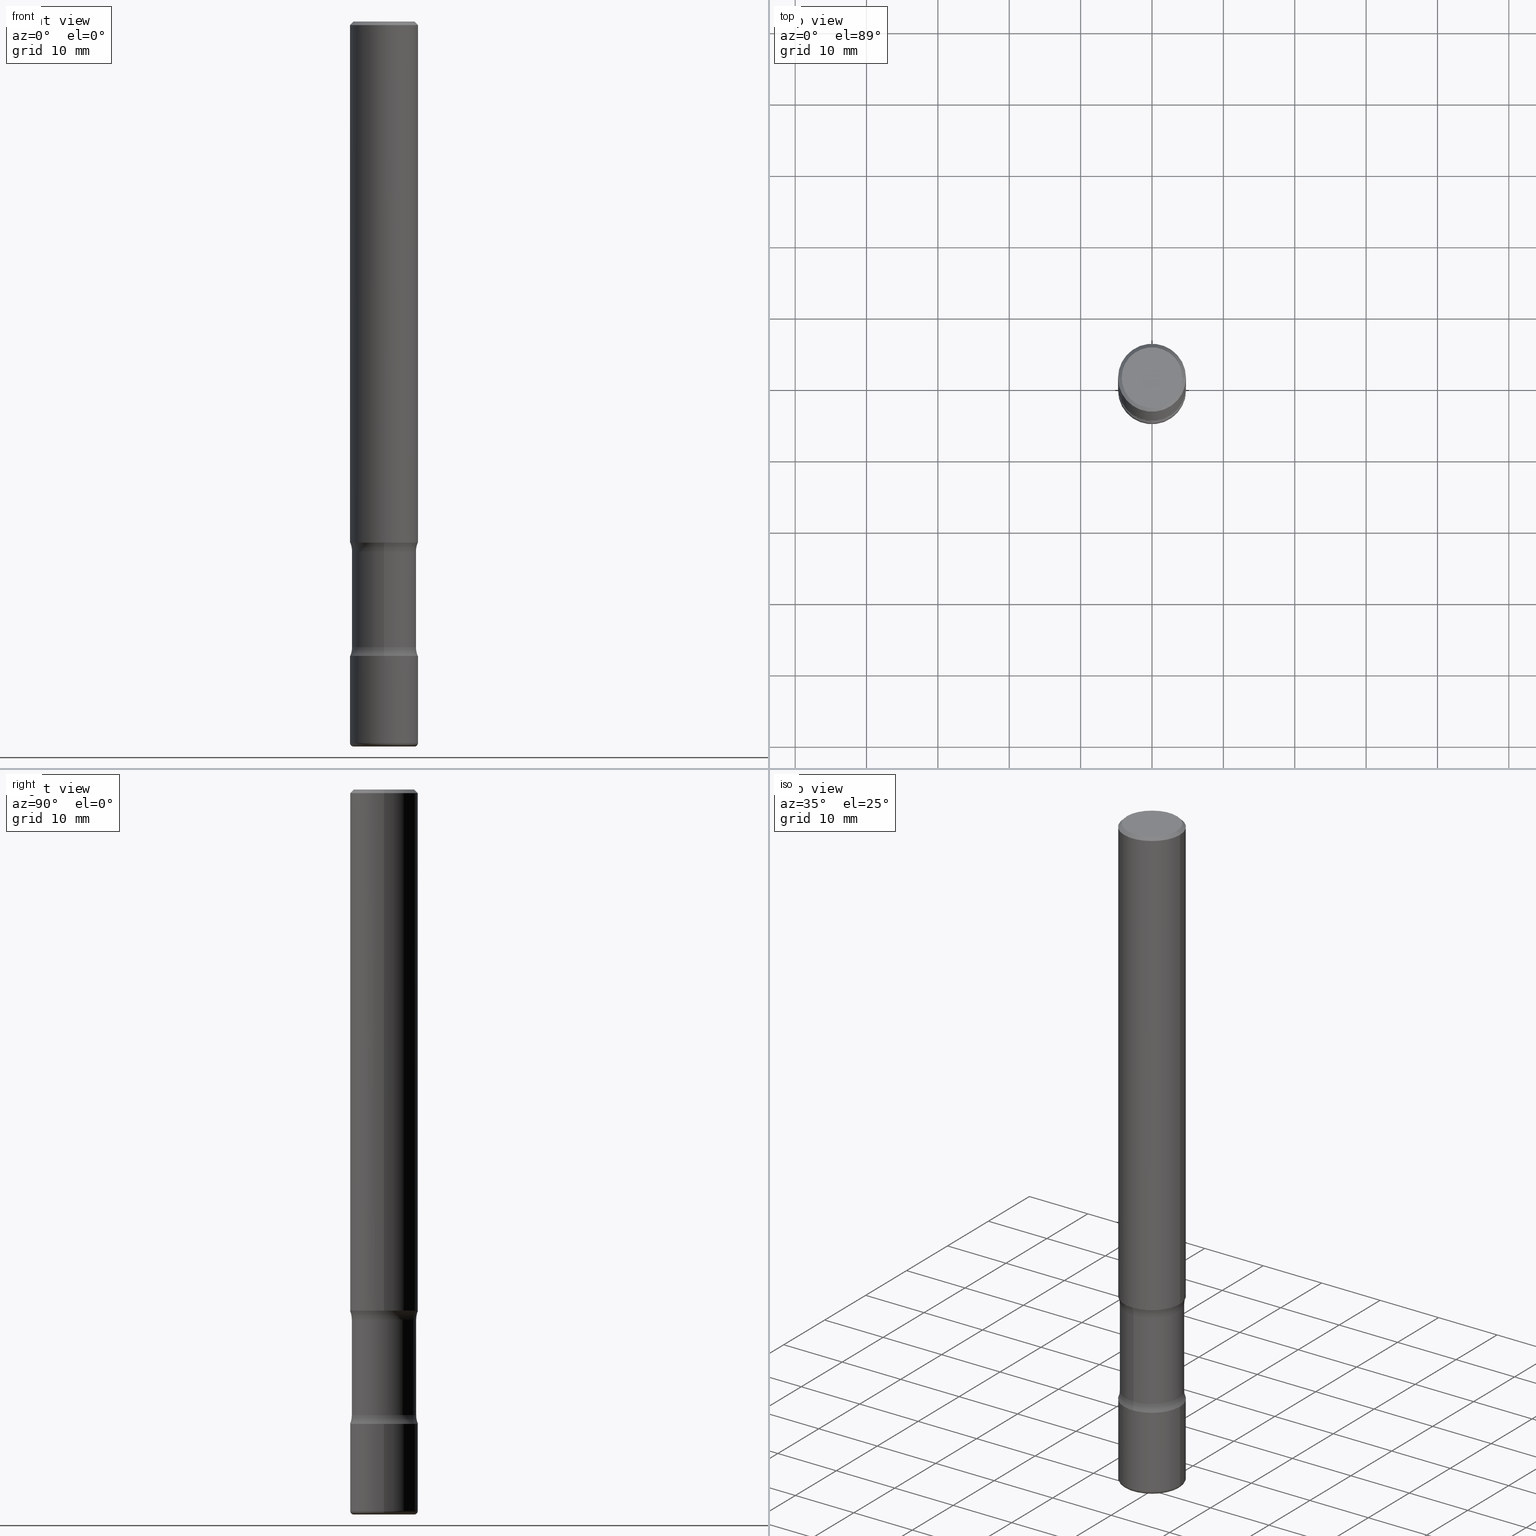
[diagram: canonical four-view strip — front | top / right | iso, engineering-drawing reading convention]
A machine part, canonical four-view strip (front | top / right | iso — engineering-drawing reading convention). The complete STEP part file that produces these views, byte-faithful:
ISO-10303-21;
HEADER;
FILE_DESCRIPTION (( 'STEP AP203' ),
    '1' );
FILE_NAME ('33507.STEP',
    '2024-03-01T22:41:39',
    ( '' ),
    ( '' ),
    'SwSTEP 2.0',
    'SolidWorks 2023',
    '' );
FILE_SCHEMA (( 'CONFIG_CONTROL_DESIGN' ));
ENDSEC;

DATA;
#1 = DIRECTION ( 'NONE',  ( -1.000000000000000000, 6.982962677686266711E-15, 0.000000000000000000 ) ) ;
#2 = EDGE_CURVE ( 'NONE', #53, #431, #287, .T. ) ;
#3 = DIRECTION ( 'NONE',  ( -2.445468806185136597E-29, 3.491481338843145583E-15, 1.000000000000000000 ) ) ;
#4 = ADVANCED_FACE ( 'NONE', ( #355 ), #311, .T. ) ;
#5 = DIRECTION ( 'NONE',  ( -2.445468806185136597E-29, 3.491481338843145583E-15, 1.000000000000000000 ) ) ;
#6 = CLOSED_SHELL ( 'NONE', ( #270, #34, #190, #357, #97, #37, #388, #159 ) ) ;
#7 = AXIS2_PLACEMENT_3D ( 'NONE', #31, #373, #496 ) ;
#8 = CARTESIAN_POINT ( 'NONE',  ( 8.559140821647976968E-29, -1.222018468595100934E-14, -3.500000000000000000 ) ) ;
#9 = ORIENTED_EDGE ( 'NONE', *, *, #429, .F. ) ;
#10 = APPLICATION_CONTEXT ( 'configuration controlled 3d designs of mechanical parts and assemblies' ) ;
#11 = ORIENTED_EDGE ( 'NONE', *, *, #73, .F. ) ;
#12 = FACE_OUTER_BOUND ( 'NONE', #266, .T. ) ;
#13 = VERTEX_POINT ( 'NONE', #390 ) ;
#14 = CARTESIAN_POINT ( 'NONE',  ( 0.1875000000000003608, -1.309305502066177375E-15, 9.142831454617397828E-30 ) ) ;
#15 = DIRECTION ( 'NONE',  ( -2.445468806185136597E-29, 3.491481338843145583E-15, 1.000000000000000000 ) ) ;
#16 = LINE ( 'NONE', #14, #145 ) ;
#17 = ORIENTED_EDGE ( 'NONE', *, *, #344, .F. ) ;
#18 = AXIS2_PLACEMENT_3D ( 'NONE', #234, #284, #155 ) ;
#19 = CIRCLE ( 'NONE', #47, 0.1675000000000001210 ) ;
#20 = CARTESIAN_POINT ( 'NONE',  ( 0.1875000000000003608, -1.352949018801718751E-14, -3.500000000000000000 ) ) ;
#21 = DIRECTION ( 'NONE',  ( 6.982962677686265922E-15, 1.000000000000000000, -3.078138584410440285E-15 ) ) ;
#22 = ORIENTED_EDGE ( 'NONE', *, *, #127, .T. ) ;
#23 = VERTEX_POINT ( 'NONE', #517 ) ;
#24 = ORIENTED_EDGE ( 'NONE', *, *, #487, .T. ) ;
#25 = EDGE_LOOP ( 'NONE', ( #220, #74, #22, #322 ) ) ;
#26 = EDGE_CURVE ( 'NONE', #440, #539, #395, .T. ) ;
#27 = SHAPE_DEFINITION_REPRESENTATION ( #181, #323 ) ;
#28 = ORIENTED_EDGE ( 'NONE', *, *, #344, .T. ) ;
#29 = DIRECTION ( 'NONE',  ( 1.000000000000000000, -6.982962677686266711E-15, 4.876176775795935793E-29 ) ) ;
#30 = CIRCLE ( 'NONE', #411, 0.1875000000000003608 ) ;
#31 = CARTESIAN_POINT ( 'NONE',  ( 0.000000000000000000, 0.000000000000000000, 0.000000000000000000 ) ) ;
#32 = AXIS2_PLACEMENT_3D ( 'NONE', #283, #447, #55 ) ;
#33 = CARTESIAN_POINT ( 'NONE',  ( 0.000000000000000000, 0.000000000000000000, 0.000000000000000000 ) ) ;
#34 = ADVANCED_FACE ( 'NONE', ( #298 ), #65, .F. ) ;
#35 = AXIS2_PLACEMENT_3D ( 'NONE', #54, #469, #215 ) ;
#36 = CARTESIAN_POINT ( 'NONE',  ( -0.1875000000000002498, 1.332267629550189623E-15, -9.223003294227960602E-30 ) ) ;
#37 = ADVANCED_FACE ( 'NONE', ( #486 ), #63, .F. ) ;
#38 = AXIS2_PLACEMENT_3D ( 'NONE', #222, #321, #104 ) ;
#39 = DIRECTION ( 'NONE',  ( 1.000000000000000000, -6.982962677686265922E-15, 4.876176775795936353E-29 ) ) ;
#40 = DATE_AND_TIME ( #51, #249 ) ;
#41 = PRODUCT_DEFINITION ( 'UNKNOWN', '', #111, #553 ) ;
#42 = CARTESIAN_POINT ( 'NONE',  ( -1.252040884593220094E-15, -0.1775000000000120093, -3.451010205144334986 ) ) ;
#43 = PLANE ( 'NONE',  #385 ) ;
#44 = ORIENTED_EDGE ( 'NONE', *, *, #405, .F. ) ;
#45 = ORIENTED_EDGE ( 'NONE', *, *, #205, .T. ) ;
#46 = DIRECTION ( 'NONE',  ( 2.438088387897960049E-29, -3.491481338843145188E-15, -1.000000000000000000 ) ) ;
#47 = AXIS2_PLACEMENT_3D ( 'NONE', #169, #297, #208 ) ;
#48 = DIRECTION ( 'NONE',  ( 6.860497997771531562E-15, 1.000000000000000000, 0.000000000000000000 ) ) ;
#49 = CARTESIAN_POINT ( 'NONE',  ( 1.169646248512450384E-15, 0.1675000000000001210, -5.848231242562273614E-16 ) ) ;
#50 = CARTESIAN_POINT ( 'NONE',  ( 8.559140821647976968E-29, -1.222018468595100934E-14, -3.500000000000000000 ) ) ;
#51 = CALENDAR_DATE ( 2024, 1, 3 ) ;
#52 = DIRECTION ( 'NONE',  ( 2.052439932101464102E-29, -4.054321056345256912E-15, -1.000000000000000000 ) ) ;
#53 = VERTEX_POINT ( 'NONE', #318 ) ;
#54 = CARTESIAN_POINT ( 'NONE',  ( 8.463183297233128142E-29, -1.201498963149789864E-14, -3.451010205144335430 ) ) ;
#55 = DIRECTION ( 'NONE',  ( 6.982962677686265922E-15, 1.000000000000000000, -3.078138584410437524E-15 ) ) ;
#56 = EDGE_LOOP ( 'NONE', ( #9, #223, #82, #86 ) ) ;
#57 = CIRCLE ( 'NONE', #245, 0.1249999999999999584 ) ;
#58 = CIRCLE ( 'NONE', #426, 0.1774999999999999911 ) ;
#59 = EDGE_LOOP ( 'NONE', ( #45, #525, #214, #273 ) ) ;
#60 = EDGE_CURVE ( 'NONE', #170, #401, #339, .T. ) ;
#61 = EDGE_LOOP ( 'NONE', ( #475, #407 ) ) ;
#62 = ORIENTED_EDGE ( 'NONE', *, *, #164, .T. ) ;
#63 = PLANE ( 'NONE',  #455 ) ;
#64 = FACE_OUTER_BOUND ( 'NONE', #546, .T. ) ;
#65 = TOROIDAL_SURFACE ( 'NONE', #508, 0.3024999999999999911, 0.1250000000000000278 ) ;
#66 = VECTOR ( 'NONE', #263, 39.37007874015748143 ) ;
#67 = LOCAL_TIME ( 17, 41, 39.00000000000000000, #148 ) ;
#68 = DIRECTION ( 'NONE',  ( 1.000000000000000000, -6.982962677686270655E-15, 0.000000000000000000 ) ) ;
#69 = CIRCLE ( 'NONE', #261, 0.1774999999999996303 ) ;
#70 = AXIS2_PLACEMENT_3D ( 'NONE', #544, #228, #29 ) ;
#71 = LOCAL_TIME ( 17, 41, 39.00000000000000000, #466 ) ;
#72 = FACE_OUTER_BOUND ( 'NONE', #444, .T. ) ;
#73 = EDGE_CURVE ( 'NONE', #13, #397, #69, .T. ) ;
#74 = ORIENTED_EDGE ( 'NONE', *, *, #527, .T. ) ;
#75 = PERSON_AND_ORGANIZATION_ROLE ( 'creator' ) ;
#76 = CARTESIAN_POINT ( 'NONE',  ( 9.585360787698712522E-29, -1.424734521412364332E-14, -4.000000000000000888 ) ) ;
#77 = DIRECTION ( 'NONE',  ( 1.000000000000000000, -6.982962677686265922E-15, 4.876176775795936353E-29 ) ) ;
#78 = EDGE_CURVE ( 'NONE', #532, #23, #30, .T. ) ;
#79 = PRODUCT_RELATED_PRODUCT_CATEGORY ( 'detail', '', ( #96 ) ) ;
#80 = AXIS2_PLACEMENT_3D ( 'NONE', #129, #483, #158 ) ;
#81 = CARTESIAN_POINT ( 'NONE',  ( 0.1875000000000003886, -1.134731435124022127E-14, -2.875000000000000000 ) ) ;
#82 = ORIENTED_EDGE ( 'NONE', *, *, #187, .T. ) ;
#83 = CARTESIAN_POINT ( 'NONE',  ( 7.376914475311787671E-29, -9.884854382564577022E-15, -2.923989794855664126 ) ) ;
#84 = DIRECTION ( 'NONE',  ( 2.052439932101463822E-29, -4.054321056345256912E-15, -1.000000000000000000 ) ) ;
#85 = ORIENTED_EDGE ( 'NONE', *, *, #536, .F. ) ;
#86 = ORIENTED_EDGE ( 'NONE', *, *, #293, .F. ) ;
#87 = CARTESIAN_POINT ( 'NONE',  ( -0.1875000000000003608, 1.332267629550190412E-15, -9.223003294227966207E-30 ) ) ;
#88 = FACE_OUTER_BOUND ( 'NONE', #61, .T. ) ;
#89 = CARTESIAN_POINT ( 'NONE',  ( -1.286343374582089001E-15, -0.1875000000000096867, -2.874999999999999112 ) ) ;
#90 = CC_DESIGN_PERSON_AND_ORGANIZATION_ASSIGNMENT ( #490, #500, ( #96 ) ) ;
#91 = CONICAL_SURFACE ( 'NONE', #199, 0.1875000000000001110, 0.7853981633974480570 ) ;
#92 = CARTESIAN_POINT ( 'NONE',  ( -2.075300644325803479E-15, -0.3025000000000120370, -3.451010205144334542 ) ) ;
#93 = EDGE_LOOP ( 'NONE', ( #247, #225 ) ) ;
#94 = CARTESIAN_POINT ( 'NONE',  ( -0.1875000000000003608, -1.172587257772317476E-14, -3.500000000000000000 ) ) ;
#95 = EDGE_LOOP ( 'NONE', ( #359, #211 ) ) ;
#96 = PRODUCT ( '33507', '33507', '', ( #109 ) ) ;
#97 = ADVANCED_FACE ( 'NONE', ( #251 ), #43, .F. ) ;
#98 = ORIENTED_EDGE ( 'NONE', *, *, #419, .T. ) ;
#99 = DIRECTION ( 'NONE',  ( 2.052439932101463822E-29, -4.054321056345256912E-15, -1.000000000000000000 ) ) ;
#100 = AXIS2_PLACEMENT_3D ( 'NONE', #374, #439, #21 ) ;
#101 = AXIS2_PLACEMENT_3D ( 'NONE', #226, #451, #409 ) ;
#102 = CC_DESIGN_APPROVAL ( #282, ( #248 ) ) ;
#103 = COORDINATED_UNIVERSAL_TIME_OFFSET ( 5, 0, .BEHIND. ) ;
#104 = DIRECTION ( 'NONE',  ( 1.000000000000000000, -6.982962677686274599E-15, 0.000000000000000000 ) ) ;
#105 =( CONVERSION_BASED_UNIT ( 'INCH', #406 ) LENGTH_UNIT ( ) NAMED_UNIT ( #114 ) );
#106 = DIRECTION ( 'NONE',  ( 1.000000000000000000, -6.860497997771530774E-15, 4.833906081039423280E-29 ) ) ;
#107 = AXIS2_PLACEMENT_3D ( 'NONE', #493, #99, #335 ) ;
#108 = VECTOR ( 'NONE', #112, 39.37007874015748143 ) ;
#109 = MECHANICAL_CONTEXT ( 'NONE', #229, 'mechanical' ) ;
#110 = CIRCLE ( 'NONE', #274, 0.1875000000000001110 ) ;
#111 = PRODUCT_DEFINITION_FORMATION_WITH_SPECIFIED_SOURCE ( 'ANY', '', #96, .NOT_KNOWN. ) ;
#112 = DIRECTION ( 'NONE',  ( -2.445468806185136877E-29, 3.491481338843145188E-15, 1.000000000000000000 ) ) ;
#113 = DIRECTION ( 'NONE',  ( 6.982962677686265922E-15, 1.000000000000000000, -3.078138584410437524E-15 ) ) ;
#114 = DIMENSIONAL_EXPONENTS ( 1.000000000000000000, 0.000000000000000000, 0.000000000000000000, 0.000000000000000000, 0.000000000000000000, 0.000000000000000000, 0.000000000000000000 ) ;
#115 = CALENDAR_DATE ( 2024, 1, 3 ) ;
#116 = AXIS2_PLACEMENT_3D ( 'NONE', #126, #5, #163 ) ;
#117 = CC_DESIGN_APPROVAL ( #324, ( #111 ) ) ;
#118 = DIRECTION ( 'NONE',  ( 2.052439932101463822E-29, -4.054321056345256912E-15, -1.000000000000000000 ) ) ;
#119 = ADVANCED_FACE ( 'NONE', ( #88 ), #259, .F. ) ;
#120 = DIRECTION ( 'NONE',  ( 2.438088387897960049E-29, -3.491481338843145188E-15, -1.000000000000000000 ) ) ;
#121 = EDGE_CURVE ( 'NONE', #539, #440, #481, .T. ) ;
#122 = DIRECTION ( 'NONE',  ( 6.982962677686266711E-15, 1.000000000000000000, -3.078138584410443835E-15 ) ) ;
#123 = EDGE_LOOP ( 'NONE', ( #11, #523, #488, #535 ) ) ;
#124 = AXIS2_PLACEMENT_3D ( 'NONE', #370, #497, #276 ) ;
#125 = AXIS2_PLACEMENT_3D ( 'NONE', #524, #478, #433 ) ;
#126 = CARTESIAN_POINT ( 'NONE',  ( 0.000000000000000000, 0.000000000000000000, 0.000000000000000000 ) ) ;
#127 = EDGE_CURVE ( 'NONE', #314, #23, #280, .T. ) ;
#128 = CARTESIAN_POINT ( 'NONE',  ( 8.559140821647976968E-29, -1.222018468595100934E-14, -3.500000000000000000 ) ) ;
#129 = CARTESIAN_POINT ( 'NONE',  ( 8.559140821647976968E-29, -1.222018468595100934E-14, -3.500000000000000000 ) ) ;
#130 = EDGE_CURVE ( 'NONE', #431, #53, #425, .T. ) ;
#131 = DIRECTION ( 'NONE',  ( 2.445468806185136597E-29, -3.491481338843145583E-15, -1.000000000000000000 ) ) ;
#132 = CARTESIAN_POINT ( 'NONE',  ( -1.286343374582078351E-15, -0.1875000000000125455, -3.499999999999999112 ) ) ;
#133 = DIRECTION ( 'NONE',  ( 7.105427357601001859E-15, 1.000000000000000000, -3.491481338843145583E-15 ) ) ;
#134 = VECTOR ( 'NONE', #52, 39.37007874015748143 ) ;
#135 =( NAMED_UNIT ( * ) SI_UNIT ( $, .STERADIAN. ) SOLID_ANGLE_UNIT ( ) );
#136 = ORIENTED_EDGE ( 'NONE', *, *, #461, .F. ) ;
#137 = EDGE_CURVE ( 'NONE', #13, #401, #57, .T. ) ;
#138 = DIRECTION ( 'NONE',  ( -6.982962677686265922E-15, -1.000000000000000000, 4.054321056345256912E-15 ) ) ;
#139 = CYLINDRICAL_SURFACE ( 'NONE', #70, 0.1875000000000002498 ) ;
#140 = VERTEX_POINT ( 'NONE', #186 ) ;
#141 = CIRCLE ( 'NONE', #412, 0.1875000000000003608 ) ;
#142 = CARTESIAN_POINT ( 'NONE',  ( 2.112346210000166835E-15, 0.3024999999999897771, -2.923989794855665014 ) ) ;
#143 = DIRECTION ( 'NONE',  ( 1.000000000000000000, 0.000000000000000000, 0.000000000000000000 ) ) ;
#144 = VECTOR ( 'NONE', #332, 39.37007874015748143 ) ;
#145 = VECTOR ( 'NONE', #443, 39.37007874015748143 ) ;
#146 = CARTESIAN_POINT ( 'NONE',  ( 7.388980740184074535E-29, -9.867574804498314684E-15, -2.923989794855664126 ) ) ;
#147 = CC_DESIGN_PERSON_AND_ORGANIZATION_ASSIGNMENT ( #558, #157, ( #111 ) ) ;
#148 = COORDINATED_UNIVERSAL_TIME_OFFSET ( 5, 0, .BEHIND. ) ;
#149 = DIRECTION ( 'NONE',  ( -2.445468806185136597E-29, 3.491481338843145583E-15, 1.000000000000000000 ) ) ;
#150 = CARTESIAN_POINT ( 'NONE',  ( 0.000000000000000000, 0.000000000000000000, 0.000000000000000000 ) ) ;
#151 = EDGE_LOOP ( 'NONE', ( #295, #17, #435, #450 ) ) ;
#152 = LINE ( 'NONE', #36, #449 ) ;
#153 = AXIS2_PLACEMENT_3D ( 'NONE', #434, #292, #156 ) ;
#154 = AXIS2_PLACEMENT_3D ( 'NONE', #233, #197, #383 ) ;
#155 = DIRECTION ( 'NONE',  ( 1.000000000000000000, -6.982962677686266711E-15, 0.000000000000000000 ) ) ;
#156 = DIRECTION ( 'NONE',  ( 1.000000000000000000, -6.982962677686265922E-15, 4.876176775795935793E-29 ) ) ;
#157 = PERSON_AND_ORGANIZATION_ROLE ( 'design_supplier' ) ;
#158 = DIRECTION ( 'NONE',  ( 6.982962677686265922E-15, 1.000000000000000000, -2.913971193241875244E-15 ) ) ;
#159 = ADVANCED_FACE ( 'NONE', ( #545 ), #316, .T. ) ;
#160 = DIRECTION ( 'NONE',  ( 1.000000000000000000, -6.982962677686269077E-15, 0.000000000000000000 ) ) ;
#161 = AXIS2_PLACEMENT_3D ( 'NONE', #506, #505, #68 ) ;
#162 = AXIS2_PLACEMENT_3D ( 'NONE', #315, #217, #534 ) ;
#163 = DIRECTION ( 'NONE',  ( 1.000000000000000000, -6.982962677686266711E-15, 4.876176775795935232E-29 ) ) ;
#164 = EDGE_CURVE ( 'NONE', #397, #170, #360, .T. ) ;
#165 = ORIENTED_EDGE ( 'NONE', *, *, #527, .F. ) ;
#166 = DIRECTION ( 'NONE',  ( 2.052439932101464102E-29, -4.054321056345256912E-15, -1.000000000000000000 ) ) ;
#167 = ORIENTED_EDGE ( 'NONE', *, *, #405, .T. ) ;
#168 = EDGE_LOOP ( 'NONE', ( #136, #294, #253, #275 ) ) ;
#169 = CARTESIAN_POINT ( 'NONE',  ( 0.000000000000000000, 0.000000000000000000, 0.000000000000000000 ) ) ;
#170 = VERTEX_POINT ( 'NONE', #448 ) ;
#171 = ORIENTED_EDGE ( 'NONE', *, *, #336, .F. ) ;
#172 = ORIENTED_EDGE ( 'NONE', *, *, #470, .F. ) ;
#173 = ORIENTED_EDGE ( 'NONE', *, *, #26, .T. ) ;
#174 = CARTESIAN_POINT ( 'NONE',  ( 8.559140821647976968E-29, -1.222018468595100934E-14, -3.500000000000000000 ) ) ;
#175 = EDGE_CURVE ( 'NONE', #431, #140, #334, .T. ) ;
#176 = TOROIDAL_SURFACE ( 'NONE', #125, 0.3024999999999996581, 0.1249999999999999584 ) ;
#177 = AXIS2_PLACEMENT_3D ( 'NONE', #150, #196, #39 ) ;
#178 = CC_DESIGN_APPROVAL ( #503, ( #41 ) ) ;
#179 = EDGE_LOOP ( 'NONE', ( #44, #459, #24, #238 ) ) ;
#180 = EDGE_LOOP ( 'NONE', ( #484, #165 ) ) ;
#181 = PRODUCT_DEFINITION_SHAPE ( 'NONE', 'NONE',  #41 ) ;
#182 = PERSON_AND_ORGANIZATION ( #521, #471 ) ;
#183 = ORIENTED_EDGE ( 'NONE', *, *, #336, .T. ) ;
#184 = CALENDAR_DATE ( 2024, 1, 3 ) ;
#185 = CIRCLE ( 'NONE', #221, 0.1875000000000003608 ) ;
#186 = CARTESIAN_POINT ( 'NONE',  ( 0.1875000000000001110, -1.356173001359025861E-15, -0.02000000000000000042 ) ) ;
#187 = EDGE_CURVE ( 'NONE', #140, #351, #377, .T. ) ;
#188 = DIRECTION ( 'NONE',  ( 0.000000000000000000, 0.000000000000000000, 1.000000000000000000 ) ) ;
#189 = APPROVAL_STATUS ( 'not_yet_approved' ) ;
#190 = ADVANCED_FACE ( 'NONE', ( #191 ), #328, .F. ) ;
#191 = FACE_OUTER_BOUND ( 'NONE', #123, .T. ) ;
#192 = EDGE_CURVE ( 'NONE', #514, #140, #200, .T. ) ;
#193 = CLOSED_SHELL ( 'NONE', ( #555, #366, #400, #358, #119, #547 ) ) ;
#194 = CIRCLE ( 'NONE', #32, 0.1774999999999999911 ) ;
#195 = DIRECTION ( 'NONE',  ( -2.445468806185136877E-29, 3.491481338843145188E-15, 1.000000000000000000 ) ) ;
#196 = DIRECTION ( 'NONE',  ( -2.445468806185136597E-29, 3.491481338843145583E-15, 1.000000000000000000 ) ) ;
#197 = DIRECTION ( 'NONE',  ( -2.445468806185136597E-29, 3.491481338843145583E-15, 1.000000000000000000 ) ) ;
#198 = DATE_TIME_ROLE ( 'creation_date' ) ;
#199 = AXIS2_PLACEMENT_3D ( 'NONE', #255, #131, #1 ) ;
#200 = LINE ( 'NONE', #550, #144 ) ;
#201 = PLANE ( 'NONE',  #300 ) ;
#202 = PLANE ( 'NONE',  #501 ) ;
#203 = DIRECTION ( 'NONE',  ( -1.000000000000000000, 6.982962677686266711E-15, 0.000000000000000000 ) ) ;
#204 = DIRECTION ( 'NONE',  ( -2.445468806185136597E-29, 3.491481338843145583E-15, 1.000000000000000000 ) ) ;
#205 = EDGE_CURVE ( 'NONE', #314, #543, #446, .T. ) ;
#206 = ORIENTED_EDGE ( 'NONE', *, *, #519, .F. ) ;
#207 = AXIS2_PLACEMENT_3D ( 'NONE', #384, #296, #77 ) ;
#208 = DIRECTION ( 'NONE',  ( 1.000000000000000000, -6.982962677686266711E-15, 4.876176775795935232E-29 ) ) ;
#209 = COORDINATED_UNIVERSAL_TIME_OFFSET ( 5, 0, .BEHIND. ) ;
#210 = DIRECTION ( 'NONE',  ( 2.052439932101463822E-29, -4.054321056345256912E-15, -1.000000000000000000 ) ) ;
#211 = ORIENTED_EDGE ( 'NONE', *, *, #470, .T. ) ;
#212 = CARTESIAN_POINT ( 'NONE',  ( 0.1675000000000004541, -1.513557160388503705E-14, -4.000000000000000000 ) ) ;
#213 = EDGE_CURVE ( 'NONE', #356, #489, #58, .T. ) ;
#214 = ORIENTED_EDGE ( 'NONE', *, *, #419, .F. ) ;
#215 = DIRECTION ( 'NONE',  ( 6.982962677686265922E-15, 1.000000000000000000, -4.054321056345256912E-15 ) ) ;
#216 = DIRECTION ( 'NONE',  ( -2.052439932101463822E-29, 4.054321056345256912E-15, 1.000000000000000000 ) ) ;
#217 = DIRECTION ( 'NONE',  ( -1.000000000000000000, 6.982962677686265922E-15, -4.883557194083112340E-29 ) ) ;
#218 = ORIENTED_EDGE ( 'NONE', *, *, #60, .T. ) ;
#219 = CARTESIAN_POINT ( 'NONE',  ( -2.075300644325811762E-15, -0.3025000000000094835, -2.923989794855662794 ) ) ;
#220 = ORIENTED_EDGE ( 'NONE', *, *, #331, .F. ) ;
#221 = AXIS2_PLACEMENT_3D ( 'NONE', #8, #210, #306 ) ;
#222 = CARTESIAN_POINT ( 'NONE',  ( 0.1675000000000003708, -1.506574197710817376E-14, -3.979999999999999982 ) ) ;
#223 = ORIENTED_EDGE ( 'NONE', *, *, #192, .T. ) ;
#224 = ORIENTED_EDGE ( 'NONE', *, *, #137, .F. ) ;
#225 = ORIENTED_EDGE ( 'NONE', *, *, #277, .F. ) ;
#226 = CARTESIAN_POINT ( 'NONE',  ( 9.781875224740546387E-29, -1.396592535537258233E-14, -4.000000000000000000 ) ) ;
#227 = CC_DESIGN_PERSON_AND_ORGANIZATION_ASSIGNMENT ( #382, #552, ( #111 ) ) ;
#228 = DIRECTION ( 'NONE',  ( -2.445468806185136597E-29, 3.491481338843145583E-15, 1.000000000000000000 ) ) ;
#229 = APPLICATION_CONTEXT ( 'configuration controlled 3d designs of mechanical parts and assemblies' ) ;
#230 = CIRCLE ( 'NONE', #557, 0.01999999999999988939 ) ;
#231 =( LENGTH_UNIT ( ) NAMED_UNIT ( * ) SI_UNIT ( $, .METRE. ) );
#232 = ADVANCED_FACE ( 'NONE', ( #72 ), #389, .F. ) ;
#233 = CARTESIAN_POINT ( 'NONE',  ( 9.732965848616844417E-29, -1.389609572859572061E-14, -3.979999999999999982 ) ) ;
#234 = CARTESIAN_POINT ( 'NONE',  ( 4.890937612370273159E-31, -6.982962677686291609E-17, -0.02000000000000000042 ) ) ;
#235 = PERSON_AND_ORGANIZATION ( #521, #471 ) ;
#236 = DIRECTION ( 'NONE',  ( 1.000000000000000000, -6.982962677686269866E-15, 0.000000000000000000 ) ) ;
#237 = CARTESIAN_POINT ( 'NONE',  ( 7.276365864084563130E-29, -9.686234025735224364E-15, -2.875000000000000000 ) ) ;
#238 = ORIENTED_EDGE ( 'NONE', *, *, #26, .F. ) ;
#239 = APPROVAL_DATE_TIME ( #416, #324 ) ;
#240 = LINE ( 'NONE', #509, #288 ) ;
#241 = CARTESIAN_POINT ( 'NONE',  ( 7.030722817782267716E-29, -1.003800884917404311E-14, -2.875000000000000000 ) ) ;
#242 = DIRECTION ( 'NONE',  ( 2.052439932101463822E-29, -4.054321056345256912E-15, -1.000000000000000000 ) ) ;
#243 = DIRECTION ( 'NONE',  ( 6.982962677686266711E-15, 1.000000000000000000, -3.078138584410443835E-15 ) ) ;
#244 = ADVANCED_FACE ( 'NONE', ( #285 ), #281, .T. ) ;
#245 = AXIS2_PLACEMENT_3D ( 'NONE', #219, #106, #410 ) ;
#246 = CONICAL_SURFACE ( 'NONE', #386, 0.1875000000000001110, 0.7853981633974480570 ) ;
#247 = ORIENTED_EDGE ( 'NONE', *, *, #60, .F. ) ;
#248 = SECURITY_CLASSIFICATION ( '', '', #343 ) ;
#249 = LOCAL_TIME ( 17, 41, 39.00000000000000000, #209 ) ;
#250 = CARTESIAN_POINT ( 'NONE',  ( 4.890937612370273159E-31, -6.982962677686291609E-17, -0.02000000000000000042 ) ) ;
#251 = FACE_OUTER_BOUND ( 'NONE', #93, .T. ) ;
#252 = CARTESIAN_POINT ( 'NONE',  ( 1.239475875289406768E-15, 0.1774999999999855860, -4.000000000000001776 ) ) ;
#253 = ORIENTED_EDGE ( 'NONE', *, *, #536, .T. ) ;
#254 = CC_DESIGN_PERSON_AND_ORGANIZATION_ASSIGNMENT ( #326, #75, ( #41 ) ) ;
#255 = CARTESIAN_POINT ( 'NONE',  ( 4.890937612370273159E-31, -6.982962677686291609E-17, -0.02000000000000000042 ) ) ;
#256 = DIRECTION ( 'NONE',  ( 2.438088387897960049E-29, -3.491481338843145188E-15, -1.000000000000000000 ) ) ;
#257 = EDGE_LOOP ( 'NONE', ( #183, #368, #206, #338 ) ) ;
#258 = ORIENTED_EDGE ( 'NONE', *, *, #299, .F. ) ;
#259 = PLANE ( 'NONE',  #153 ) ;
#260 = LINE ( 'NONE', #252, #134 ) ;
#261 = AXIS2_PLACEMENT_3D ( 'NONE', #507, #556, #243 ) ;
#262 = CIRCLE ( 'NONE', #116, 0.1675000000000001210 ) ;
#263 = DIRECTION ( 'NONE',  ( -2.445468806185136877E-29, 3.491481338843145188E-15, 1.000000000000000000 ) ) ;
#264 = APPROVAL_PERSON_ORGANIZATION ( #235, #324, #387 ) ;
#265 = DIRECTION ( 'NONE',  ( 1.000000000000000000, -6.860497997771530774E-15, 4.833906081039423280E-29 ) ) ;
#266 = EDGE_LOOP ( 'NONE', ( #28, #538 ) ) ;
#267 = EDGE_LOOP ( 'NONE', ( #172, #398, #541, #85 ) ) ;
#268 = UNCERTAINTY_MEASURE_WITH_UNIT (LENGTH_MEASURE( 1.000000000000000082E-05 ), #105, 'distance_accuracy_value', 'NONE');
#269 = ORIENTED_EDGE ( 'NONE', *, *, #175, .T. ) ;
#270 = ADVANCED_FACE ( 'NONE', ( #468 ), #462, .T. ) ;
#271 = APPLICATION_PROTOCOL_DEFINITION ( 'international standard', 'config_control_design', 1994, #10 ) ;
#272 = DIRECTION ( 'NONE',  ( -6.982962677686267499E-15, -1.000000000000000000, 0.000000000000000000 ) ) ;
#273 = ORIENTED_EDGE ( 'NONE', *, *, #127, .F. ) ;
#274 = AXIS2_PLACEMENT_3D ( 'NONE', #502, #381, #458 ) ;
#275 = ORIENTED_EDGE ( 'NONE', *, *, #519, .T. ) ;
#276 = DIRECTION ( 'NONE',  ( 1.000000000000000000, -6.982962677686269077E-15, 0.000000000000000000 ) ) ;
#277 = EDGE_CURVE ( 'NONE', #401, #170, #482, .T. ) ;
#278 = CARTESIAN_POINT ( 'NONE',  ( 8.463183297233128142E-29, -1.201498963149789864E-14, -3.451010205144335430 ) ) ;
#279 = ORIENTED_EDGE ( 'NONE', *, *, #130, .T. ) ;
#280 = CIRCLE ( 'NONE', #38, 0.01999999999999988939 ) ;
#281 = TOROIDAL_SURFACE ( 'NONE', #154, 0.1675000000000003708, 0.01999999999999988939 ) ;
#282 = APPROVAL ( #312, 'UNSPECIFIED' ) ;
#283 = CARTESIAN_POINT ( 'NONE',  ( 8.458592210420752426E-29, -1.202156432912165511E-14, -3.451010205144335430 ) ) ;
#284 = DIRECTION ( 'NONE',  ( -2.445468806185136597E-29, 3.491481338843145583E-15, 1.000000000000000000 ) ) ;
#285 = FACE_OUTER_BOUND ( 'NONE', #59, .T. ) ;
#286 = PERSON_AND_ORGANIZATION_ROLE ( 'classification_officer' ) ;
#287 = CIRCLE ( 'NONE', #548, 0.1875000000000003886 ) ;
#288 = VECTOR ( 'NONE', #418, 39.37007874015748143 ) ;
#289 = DATE_AND_TIME ( #115, #67 ) ;
#290 = APPROVAL_PERSON_ORGANIZATION ( #333, #282, #305 ) ;
#291 = CYLINDRICAL_SURFACE ( 'NONE', #177, 0.1875000000000003608 ) ;
#292 = DIRECTION ( 'NONE',  ( -2.438088387897960049E-29, 3.491481338843145188E-15, 1.000000000000000000 ) ) ;
#293 = EDGE_CURVE ( 'NONE', #353, #351, #240, .T. ) ;
#294 = ORIENTED_EDGE ( 'NONE', *, *, #460, .F. ) ;
#295 = ORIENTED_EDGE ( 'NONE', *, *, #192, .F. ) ;
#296 = DIRECTION ( 'NONE',  ( -2.445468806185136597E-29, 3.491481338843145583E-15, 1.000000000000000000 ) ) ;
#297 = DIRECTION ( 'NONE',  ( -2.445468806185136597E-29, 3.491481338843145583E-15, 1.000000000000000000 ) ) ;
#298 = FACE_OUTER_BOUND ( 'NONE', #267, .T. ) ;
#299 = EDGE_CURVE ( 'NONE', #53, #351, #152, .T. ) ;
#300 = AXIS2_PLACEMENT_3D ( 'NONE', #346, #256, #515 ) ;
#301 = CARTESIAN_POINT ( 'NONE',  ( 9.732965848616844417E-29, -1.389609572859572061E-14, -3.979999999999999982 ) ) ;
#302 = CARTESIAN_POINT ( 'NONE',  ( 9.732965848616844417E-29, -1.389609572859572061E-14, -3.979999999999999982 ) ) ;
#303 = DIRECTION ( 'NONE',  ( -2.445468806185136597E-29, 3.491481338843145583E-15, 1.000000000000000000 ) ) ;
#304 = ADVANCED_FACE ( 'NONE', ( #551 ), #291, .T. ) ;
#305 = APPROVAL_ROLE ( '' ) ;
#306 = DIRECTION ( 'NONE',  ( 6.982962677686265922E-15, 1.000000000000000000, -2.913971193241875244E-15 ) ) ;
#307 = ORIENTED_EDGE ( 'NONE', *, *, #73, .T. ) ;
#308 = DIRECTION ( 'NONE',  ( 6.982962677686265922E-15, 1.000000000000000000, -4.054321056345256912E-15 ) ) ;
#309 = EDGE_CURVE ( 'NONE', #351, #140, #110, .T. ) ;
#310 = DIRECTION ( 'NONE',  ( -1.000000000000000000, 7.105427357600964782E-15, 0.000000000000000000 ) ) ;
#311 = CYLINDRICAL_SURFACE ( 'NONE', #207, 0.1875000000000003608 ) ;
#312 = APPROVAL_STATUS ( 'not_yet_approved' ) ;
#313 = ORIENTED_EDGE ( 'NONE', *, *, #474, .F. ) ;
#314 = VERTEX_POINT ( 'NONE', #212 ) ;
#315 = CARTESIAN_POINT ( 'NONE',  ( 2.112346210000180246E-15, 0.3024999999999880007, -3.451010205144336762 ) ) ;
#316 = CYLINDRICAL_SURFACE ( 'NONE', #100, 0.1774999999999998246 ) ;
#317 = ORIENTED_EDGE ( 'NONE', *, *, #121, .T. ) ;
#318 = CARTESIAN_POINT ( 'NONE',  ( -0.1875000000000003886, -3.721651608425259832E-15, -2.875000000000000000 ) ) ;
#319 = ORIENTED_EDGE ( 'NONE', *, *, #487, .F. ) ;
#320 =( NAMED_UNIT ( * ) PLANE_ANGLE_UNIT ( ) SI_UNIT ( $, .RADIAN. ) );
#321 = DIRECTION ( 'NONE',  ( -6.982962677686266711E-15, -1.000000000000000000, 3.491481338843145583E-15 ) ) ;
#322 = ORIENTED_EDGE ( 'NONE', *, *, #78, .F. ) ;
#323 = ADVANCED_BREP_SHAPE_REPRESENTATION ( '33507', ( #472, #492, #480, #342 ), #465 ) ;
#324 = APPROVAL ( #189, 'UNSPECIFIED' ) ;
#325 = AXIS2_PLACEMENT_3D ( 'NONE', #128, #303, #345 ) ;
#326 = PERSON_AND_ORGANIZATION ( #521, #471 ) ;
#327 = CARTESIAN_POINT ( 'NONE',  ( 1.309305502066262769E-15, 0.1874999999999880929, -3.500000000000000444 ) ) ;
#328 = TOROIDAL_SURFACE ( 'NONE', #403, 0.3024999999999996581, 0.1249999999999999584 ) ;
#329 = DIRECTION ( 'NONE',  ( 6.982962677686265922E-15, 1.000000000000000000, -3.078138584410440285E-15 ) ) ;
#330 = TOROIDAL_SURFACE ( 'NONE', #371, 0.1675000000000003708, 0.01999999999999988939 ) ;
#331 = EDGE_CURVE ( 'NONE', #543, #532, #230, .T. ) ;
#332 = DIRECTION ( 'NONE',  ( 0.7071067811865473507, -7.319954787623256045E-15, -0.7071067811865476838 ) ) ;
#333 = PERSON_AND_ORGANIZATION ( #521, #471 ) ;
#334 = LINE ( 'NONE', #467, #108 ) ;
#335 = DIRECTION ( 'NONE',  ( 6.982962677686266711E-15, 1.000000000000000000, -2.913971193241881161E-15 ) ) ;
#336 = EDGE_CURVE ( 'NONE', #397, #13, #510, .T. ) ;
#337 = DIRECTION ( 'NONE',  ( 6.982962677686266711E-15, 1.000000000000000000, -2.913971193241881161E-15 ) ) ;
#338 = ORIENTED_EDGE ( 'NONE', *, *, #436, .F. ) ;
#339 = CIRCLE ( 'NONE', #107, 0.1874999999999999722 ) ;
#340 = AXIS2_PLACEMENT_3D ( 'NONE', #76, #423, #329 ) ;
#341 = COORDINATED_UNIVERSAL_TIME_OFFSET ( 5, 0, .BEHIND. ) ;
#342 = AXIS2_PLACEMENT_3D ( 'NONE', #33, #188, #143 ) ;
#343 = SECURITY_CLASSIFICATION_LEVEL ( 'unclassified' ) ;
#344 = EDGE_CURVE ( 'NONE', #353, #514, #19, .T. ) ;
#345 = DIRECTION ( 'NONE',  ( 1.000000000000000000, -6.982962677686269866E-15, 0.000000000000000000 ) ) ;
#346 = CARTESIAN_POINT ( 'NONE',  ( 2.800410097363089364E-28, 1.212933906171877819E-14, -4.000000000000000888 ) ) ;
#347 = LINE ( 'NONE', #87, #66 ) ;
#348 = EDGE_LOOP ( 'NONE', ( #313, #307, #363, #477 ) ) ;
#349 = CIRCLE ( 'NONE', #80, 0.1875000000000003608 ) ;
#350 = FACE_OUTER_BOUND ( 'NONE', #56, .T. ) ;
#351 = VERTEX_POINT ( 'NONE', #399 ) ;
#352 = FACE_OUTER_BOUND ( 'NONE', #180, .T. ) ;
#353 = VERTEX_POINT ( 'NONE', #520 ) ;
#354 = DIRECTION ( 'NONE',  ( 2.445468806185136597E-29, -3.491481338843145583E-15, -1.000000000000000000 ) ) ;
#355 = FACE_OUTER_BOUND ( 'NONE', #179, .T. ) ;
#356 = VERTEX_POINT ( 'NONE', #42 ) ;
#357 = ADVANCED_FACE ( 'NONE', ( #437 ), #176, .F. ) ;
#358 = ADVANCED_FACE ( 'NONE', ( #12 ), #202, .F. ) ;
#359 = ORIENTED_EDGE ( 'NONE', *, *, #460, .T. ) ;
#360 = CIRCLE ( 'NONE', #417, 0.1249999999999999584 ) ;
#361 = AXIS2_PLACEMENT_3D ( 'NONE', #237, #421, #337 ) ;
#362 = APPROVAL_PERSON_ORGANIZATION ( #182, #503, #495 ) ;
#363 = ORIENTED_EDGE ( 'NONE', *, *, #436, .T. ) ;
#364 = APPLICATION_PROTOCOL_DEFINITION ( 'international standard', 'config_control_design', 1994, #229 ) ;
#365 = DIRECTION ( 'NONE',  ( -1.000000000000000000, 6.982962677686265922E-15, -4.883557194083112340E-29 ) ) ;
#366 = ADVANCED_FACE ( 'NONE', ( #350 ), #246, .T. ) ;
#367 = CARTESIAN_POINT ( 'NONE',  ( -0.1875000000000003331, -1.256382809904552961E-14, -3.979999999999999982 ) ) ;
#368 = ORIENTED_EDGE ( 'NONE', *, *, #474, .T. ) ;
#369 = DATE_AND_TIME ( #184, #413 ) ;
#370 = CARTESIAN_POINT ( 'NONE',  ( 7.030722817782267716E-29, -1.003800884917404311E-14, -2.875000000000000000 ) ) ;
#371 = AXIS2_PLACEMENT_3D ( 'NONE', #301, #432, #394 ) ;
#372 = CC_DESIGN_SECURITY_CLASSIFICATION ( #248, ( #111 ) ) ;
#373 = DIRECTION ( 'NONE',  ( -2.445468806185136597E-29, 3.491481338843145583E-15, 1.000000000000000000 ) ) ;
#374 = CARTESIAN_POINT ( 'NONE',  ( 9.585360787698712522E-29, -1.424734521412364332E-14, -4.000000000000000888 ) ) ;
#375 = CYLINDRICAL_SURFACE ( 'NONE', #7, 0.1875000000000002498 ) ;
#376 = DATE_TIME_ROLE ( 'classification_date' ) ;
#377 = CIRCLE ( 'NONE', #18, 0.1875000000000001110 ) ;
#378 = AXIS2_PLACEMENT_3D ( 'NONE', #92, #265, #48 ) ;
#379 = DIRECTION ( 'NONE',  ( 6.982962677686265133E-15, 1.000000000000000000, -4.054321056345256912E-15 ) ) ;
#380 = CC_DESIGN_DATE_AND_TIME_ASSIGNMENT ( #289, #198, ( #41 ) ) ;
#381 = DIRECTION ( 'NONE',  ( -2.445468806185136597E-29, 3.491481338843145583E-15, 1.000000000000000000 ) ) ;
#382 = PERSON_AND_ORGANIZATION ( #521, #471 ) ;
#383 = DIRECTION ( 'NONE',  ( 1.000000000000000000, -6.982962677686263555E-15, 4.883557194083111780E-29 ) ) ;
#384 = CARTESIAN_POINT ( 'NONE',  ( 0.000000000000000000, 0.000000000000000000, 0.000000000000000000 ) ) ;
#385 = AXIS2_PLACEMENT_3D ( 'NONE', #392, #84, #308 ) ;
#386 = AXIS2_PLACEMENT_3D ( 'NONE', #250, #354, #203 ) ;
#387 = APPROVAL_ROLE ( '' ) ;
#388 = ADVANCED_FACE ( 'NONE', ( #442 ), #456, .F. ) ;
#389 = PLANE ( 'NONE',  #531 ) ;
#390 = CARTESIAN_POINT ( 'NONE',  ( -1.252040884593229560E-15, -0.1775000000000095113, -2.923989794855663682 ) ) ;
#391 = FACE_OUTER_BOUND ( 'NONE', #151, .T. ) ;
#392 = CARTESIAN_POINT ( 'NONE',  ( 7.030722817782267716E-29, -1.003800884917404311E-14, -2.875000000000000000 ) ) ;
#393 = ORIENTED_EDGE ( 'NONE', *, *, #299, .T. ) ;
#394 = DIRECTION ( 'NONE',  ( 1.000000000000000000, -6.982962677686263555E-15, 4.883557194083111780E-29 ) ) ;
#395 = CIRCLE ( 'NONE', #325, 0.1875000000000003608 ) ;
#396 = ORIENTED_EDGE ( 'NONE', *, *, #175, .F. ) ;
#397 = VERTEX_POINT ( 'NONE', #559 ) ;
#398 = ORIENTED_EDGE ( 'NONE', *, *, #461, .T. ) ;
#399 = CARTESIAN_POINT ( 'NONE',  ( -0.1875000000000001110, 1.239475875289312893E-15, -0.02000000000000000042 ) ) ;
#400 = ADVANCED_FACE ( 'NONE', ( #391 ), #91, .T. ) ;
#401 = VERTEX_POINT ( 'NONE', #89 ) ;
#402 = CARTESIAN_POINT ( 'NONE',  ( 9.732965848616844417E-29, -1.389609572859572061E-14, -3.979999999999999982 ) ) ;
#403 = AXIS2_PLACEMENT_3D ( 'NONE', #146, #242, #379 ) ;
#404 = CIRCLE ( 'NONE', #378, 0.1250000000000000000 ) ;
#405 = EDGE_CURVE ( 'NONE', #532, #440, #347, .T. ) ;
#406 = LENGTH_MEASURE_WITH_UNIT ( LENGTH_MEASURE( 0.02539999999999999897 ), #231 );
#407 = ORIENTED_EDGE ( 'NONE', *, *, #2, .F. ) ;
#408 = EDGE_LOOP ( 'NONE', ( #224, #171, #62, #218 ) ) ;
#409 = DIRECTION ( 'NONE',  ( 1.000000000000000000, -6.982962677686270655E-15, 0.000000000000000000 ) ) ;
#410 = DIRECTION ( 'NONE',  ( 6.860497997771529985E-15, 1.000000000000000000, 0.000000000000000000 ) ) ;
#411 = AXIS2_PLACEMENT_3D ( 'NONE', #302, #204, #560 ) ;
#412 = AXIS2_PLACEMENT_3D ( 'NONE', #402, #15, #516 ) ;
#413 = LOCAL_TIME ( 17, 41, 39.00000000000000000, #103 ) ;
#414 = CARTESIAN_POINT ( 'NONE',  ( 0.1675000000000001210, -1.252653207992879077E-15, 8.469775550109244990E-30 ) ) ;
#415 = DIRECTION ( 'NONE',  ( -1.000000000000000000, 6.982962677686265922E-15, -4.876176775795935793E-29 ) ) ;
#416 = DATE_AND_TIME ( #504, #71 ) ;
#417 = AXIS2_PLACEMENT_3D ( 'NONE', #142, #365, #272 ) ;
#418 = DIRECTION ( 'NONE',  ( -0.7071067811865473507, 2.468850131082255088E-15, -0.7071067811865476838 ) ) ;
#419 = EDGE_CURVE ( 'NONE', #23, #532, #141, .T. ) ;
#420 = CIRCLE ( 'NONE', #162, 0.1250000000000000000 ) ;
#421 = DIRECTION ( 'NONE',  ( 2.052439932101463822E-29, -4.054321056345256912E-15, -1.000000000000000000 ) ) ;
#422 = ORIENTED_EDGE ( 'NONE', *, *, #187, .F. ) ;
#423 = DIRECTION ( 'NONE',  ( 2.052439932101463822E-29, -4.054321056345256912E-15, -1.000000000000000000 ) ) ;
#424 = ADVANCED_FACE ( 'NONE', ( #529 ), #330, .T. ) ;
#425 = CIRCLE ( 'NONE', #124, 0.1875000000000003886 ) ;
#426 = AXIS2_PLACEMENT_3D ( 'NONE', #512, #118, #113 ) ;
#427 = AXIS2_PLACEMENT_3D ( 'NONE', #83, #485, #122 ) ;
#428 = CARTESIAN_POINT ( 'NONE',  ( -0.1675000000000003708, -1.270593664619755135E-14, -3.979999999999999982 ) ) ;
#429 = EDGE_CURVE ( 'NONE', #514, #353, #262, .T. ) ;
#430 = LINE ( 'NONE', #438, #549 ) ;
#431 = VERTEX_POINT ( 'NONE', #81 ) ;
#432 = DIRECTION ( 'NONE',  ( -2.445468806185136597E-29, 3.491481338843145583E-15, 1.000000000000000000 ) ) ;
#433 = DIRECTION ( 'NONE',  ( 6.982962677686265133E-15, 1.000000000000000000, -4.054321056345256912E-15 ) ) ;
#434 = CARTESIAN_POINT ( 'NONE',  ( 7.030722817782267716E-29, -1.003800884917404311E-14, -2.875000000000000000 ) ) ;
#435 = ORIENTED_EDGE ( 'NONE', *, *, #293, .T. ) ;
#436 = EDGE_CURVE ( 'NONE', #397, #489, #260, .T. ) ;
#437 = FACE_OUTER_BOUND ( 'NONE', #408, .T. ) ;
#438 = CARTESIAN_POINT ( 'NONE',  ( -1.217738394604349609E-15, -0.1775000000000140632, -4.000000000000000888 ) ) ;
#439 = DIRECTION ( 'NONE',  ( 2.052439932101463822E-29, -4.054321056345256912E-15, -1.000000000000000000 ) ) ;
#440 = VERTEX_POINT ( 'NONE', #94 ) ;
#441 = ORIENTED_EDGE ( 'NONE', *, *, #309, .F. ) ;
#442 = FACE_OUTER_BOUND ( 'NONE', #168, .T. ) ;
#443 = DIRECTION ( 'NONE',  ( -2.445468806185136877E-29, 3.491481338843145188E-15, 1.000000000000000000 ) ) ;
#444 = EDGE_LOOP ( 'NONE', ( #317, #173 ) ) ;
#445 = VERTEX_POINT ( 'NONE', #132 ) ;
#446 = CIRCLE ( 'NONE', #161, 0.1675000000000004541 ) ;
#447 = DIRECTION ( 'NONE',  ( 2.052439932101463822E-29, -4.054321056345256912E-15, -1.000000000000000000 ) ) ;
#448 = CARTESIAN_POINT ( 'NONE',  ( 1.309305502066247583E-15, 0.1874999999999902855, -2.875000000000000444 ) ) ;
#449 = VECTOR ( 'NONE', #195, 39.37007874015748143 ) ;
#450 = ORIENTED_EDGE ( 'NONE', *, *, #309, .T. ) ;
#451 = DIRECTION ( 'NONE',  ( -2.445468806185136597E-29, 3.491481338843145583E-15, 1.000000000000000000 ) ) ;
#452 = DIRECTION ( 'NONE',  ( 6.982962677686265922E-15, 1.000000000000000000, -4.054321056345256912E-15 ) ) ;
#453 = CARTESIAN_POINT ( 'NONE',  ( -0.1675000000000004541, -1.266979718600997134E-14, -4.000000000000000000 ) ) ;
#454 = CC_DESIGN_PERSON_AND_ORGANIZATION_ASSIGNMENT ( #513, #286, ( #248 ) ) ;
#455 = AXIS2_PLACEMENT_3D ( 'NONE', #50, #216, #138 ) ;
#456 = TOROIDAL_SURFACE ( 'NONE', #35, 0.3024999999999999911, 0.1250000000000000278 ) ;
#457 = DATE_AND_TIME ( #511, #533 ) ;
#458 = DIRECTION ( 'NONE',  ( 1.000000000000000000, -6.982962677686266711E-15, 0.000000000000000000 ) ) ;
#459 = ORIENTED_EDGE ( 'NONE', *, *, #78, .T. ) ;
#460 = EDGE_CURVE ( 'NONE', #526, #445, #349, .T. ) ;
#461 = EDGE_CURVE ( 'NONE', #445, #356, #404, .T. ) ;
#462 = CYLINDRICAL_SURFACE ( 'NONE', #340, 0.1774999999999998246 ) ;
#463 = ORIENTED_EDGE ( 'NONE', *, *, #121, .F. ) ;
#464 = CLOSED_SHELL ( 'NONE', ( #304, #244, #498, #424, #4, #232 ) ) ;
#465 =( GEOMETRIC_REPRESENTATION_CONTEXT ( 3 ) GLOBAL_UNCERTAINTY_ASSIGNED_CONTEXT ( ( #268 ) ) GLOBAL_UNIT_ASSIGNED_CONTEXT ( ( #105, #320, #135 ) ) REPRESENTATION_CONTEXT ( 'NONE', 'WORKASPACE' ) );
#466 = COORDINATED_UNIVERSAL_TIME_OFFSET ( 5, 0, .BEHIND. ) ;
#467 = CARTESIAN_POINT ( 'NONE',  ( 0.1875000000000002498, -1.309305502066176783E-15, 9.142831454617392223E-30 ) ) ;
#468 = FACE_OUTER_BOUND ( 'NONE', #257, .T. ) ;
#469 = DIRECTION ( 'NONE',  ( 2.052439932101463822E-29, -4.054321056345256912E-15, -1.000000000000000000 ) ) ;
#470 = EDGE_CURVE ( 'NONE', #445, #526, #185, .T. ) ;
#471 = ORGANIZATION ( 'UNSPECIFIED', 'UNSPECIFIED', '' ) ;
#472 = MANIFOLD_SOLID_BREP ( 'Body-Move/Copy2[1]', #464 ) ;
#473 = APPROVAL_DATE_TIME ( #40, #282 ) ;
#474 = EDGE_CURVE ( 'NONE', #13, #356, #430, .T. ) ;
#475 = ORIENTED_EDGE ( 'NONE', *, *, #130, .F. ) ;
#476 = DIRECTION ( 'NONE',  ( -1.000000000000000000, 6.982962677686265922E-15, -4.876176775795935793E-29 ) ) ;
#477 = ORIENTED_EDGE ( 'NONE', *, *, #213, .F. ) ;
#478 = DIRECTION ( 'NONE',  ( 2.052439932101463822E-29, -4.054321056345256912E-15, -1.000000000000000000 ) ) ;
#479 = DIRECTION ( 'NONE',  ( 2.052439932101463822E-29, -4.054321056345256912E-15, -1.000000000000000000 ) ) ;
#480 = MANIFOLD_SOLID_BREP ( 'Body-Move/Copy2[4]', #6 ) ;
#481 = CIRCLE ( 'NONE', #530, 0.1875000000000003608 ) ;
#482 = CIRCLE ( 'NONE', #361, 0.1874999999999999722 ) ;
#483 = DIRECTION ( 'NONE',  ( 2.052439932101463822E-29, -4.054321056345256912E-15, -1.000000000000000000 ) ) ;
#484 = ORIENTED_EDGE ( 'NONE', *, *, #205, .F. ) ;
#485 = DIRECTION ( 'NONE',  ( 2.052439932101463822E-29, -4.054321056345256912E-15, -1.000000000000000000 ) ) ;
#486 = FACE_OUTER_BOUND ( 'NONE', #95, .T. ) ;
#487 = EDGE_CURVE ( 'NONE', #23, #539, #16, .T. ) ;
#488 = ORIENTED_EDGE ( 'NONE', *, *, #277, .T. ) ;
#489 = VERTEX_POINT ( 'NONE', #522 ) ;
#490 = PERSON_AND_ORGANIZATION ( #521, #471 ) ;
#491 = EDGE_LOOP ( 'NONE', ( #98, #167, #463, #319 ) ) ;
#492 = MANIFOLD_SOLID_BREP ( 'Body-Move/Copy2[2]', #193 ) ;
#493 = CARTESIAN_POINT ( 'NONE',  ( 7.276365864084563130E-29, -9.686234025735224364E-15, -2.875000000000000000 ) ) ;
#494 = ORIENTED_EDGE ( 'NONE', *, *, #2, .T. ) ;
#495 = APPROVAL_ROLE ( '' ) ;
#496 = DIRECTION ( 'NONE',  ( 1.000000000000000000, -6.982962677686266711E-15, 4.876176775795935793E-29 ) ) ;
#497 = DIRECTION ( 'NONE',  ( -2.445468806185136597E-29, 3.491481338843145583E-15, 1.000000000000000000 ) ) ;
#498 = ADVANCED_FACE ( 'NONE', ( #352 ), #201, .T. ) ;
#499 = FACE_OUTER_BOUND ( 'NONE', #528, .T. ) ;
#500 = PERSON_AND_ORGANIZATION_ROLE ( 'design_owner' ) ;
#501 = AXIS2_PLACEMENT_3D ( 'NONE', #49, #46, #476 ) ;
#502 = CARTESIAN_POINT ( 'NONE',  ( 4.890937612370273159E-31, -6.982962677686291609E-17, -0.02000000000000000042 ) ) ;
#503 = APPROVAL ( #537, 'UNSPECIFIED' ) ;
#504 = CALENDAR_DATE ( 2024, 1, 3 ) ;
#505 = DIRECTION ( 'NONE',  ( -2.445468806185136597E-29, 3.491481338843145583E-15, 1.000000000000000000 ) ) ;
#506 = CARTESIAN_POINT ( 'NONE',  ( 9.781875224740546387E-29, -1.396592535537258233E-14, -4.000000000000000000 ) ) ;
#507 = CARTESIAN_POINT ( 'NONE',  ( 7.376914475311787671E-29, -9.884854382564577022E-15, -2.923989794855664126 ) ) ;
#508 = AXIS2_PLACEMENT_3D ( 'NONE', #278, #479, #452 ) ;
#509 = CARTESIAN_POINT ( 'NONE',  ( -0.1875000000000001110, 1.239475875289312893E-15, -0.02000000000000000042 ) ) ;
#510 = CIRCLE ( 'NONE', #427, 0.1774999999999996303 ) ;
#511 = CALENDAR_DATE ( 2024, 1, 3 ) ;
#512 = CARTESIAN_POINT ( 'NONE',  ( 8.458592210420752426E-29, -1.202156432912165511E-14, -3.451010205144335430 ) ) ;
#513 = PERSON_AND_ORGANIZATION ( #521, #471 ) ;
#514 = VERTEX_POINT ( 'NONE', #414 ) ;
#515 = DIRECTION ( 'NONE',  ( -1.000000000000000000, 6.982962677686265922E-15, -4.876176775795935793E-29 ) ) ;
#516 = DIRECTION ( 'NONE',  ( 1.000000000000000000, -6.982962677686269866E-15, 0.000000000000000000 ) ) ;
#517 = CARTESIAN_POINT ( 'NONE',  ( 0.1875000000000003331, -1.520540123066189720E-14, -3.979999999999999982 ) ) ;
#518 = CIRCLE ( 'NONE', #101, 0.1675000000000004541 ) ;
#519 = EDGE_CURVE ( 'NONE', #489, #356, #194, .T. ) ;
#520 = CARTESIAN_POINT ( 'NONE',  ( -0.1675000000000001210, 1.204561061900881639E-15, -8.301862719484118796E-30 ) ) ;
#521 = PERSON ( 'UNSPECIFIED', 'UNSPECIFIED', 'UNSPECIFIED', ('UNSPECIFIED'), ('UNSPECIFIED'), ('UNSPECIFIED') ) ;
#522 = CARTESIAN_POINT ( 'NONE',  ( 1.239475875289396907E-15, 0.1774999999999879730, -3.451010205144335874 ) ) ;
#523 = ORIENTED_EDGE ( 'NONE', *, *, #137, .T. ) ;
#524 = CARTESIAN_POINT ( 'NONE',  ( 7.388980740184074535E-29, -9.867574804498314684E-15, -2.923989794855664126 ) ) ;
#525 = ORIENTED_EDGE ( 'NONE', *, *, #331, .T. ) ;
#526 = VERTEX_POINT ( 'NONE', #327 ) ;
#527 = EDGE_CURVE ( 'NONE', #543, #314, #518, .T. ) ;
#528 = EDGE_LOOP ( 'NONE', ( #258, #494, #269, #441 ) ) ;
#529 = FACE_OUTER_BOUND ( 'NONE', #25, .T. ) ;
#530 = AXIS2_PLACEMENT_3D ( 'NONE', #174, #149, #236 ) ;
#531 = AXIS2_PLACEMENT_3D ( 'NONE', #554, #120, #415 ) ;
#532 = VERTEX_POINT ( 'NONE', #367 ) ;
#533 = LOCAL_TIME ( 17, 41, 39.00000000000000000, #341 ) ;
#534 = DIRECTION ( 'NONE',  ( -6.982962677686266711E-15, -1.000000000000000000, 0.000000000000000000 ) ) ;
#535 = ORIENTED_EDGE ( 'NONE', *, *, #164, .F. ) ;
#536 = EDGE_CURVE ( 'NONE', #526, #489, #420, .T. ) ;
#537 = APPROVAL_STATUS ( 'not_yet_approved' ) ;
#538 = ORIENTED_EDGE ( 'NONE', *, *, #429, .T. ) ;
#539 = VERTEX_POINT ( 'NONE', #20 ) ;
#540 = APPROVAL_DATE_TIME ( #369, #503 ) ;
#541 = ORIENTED_EDGE ( 'NONE', *, *, #213, .T. ) ;
#542 = CC_DESIGN_DATE_AND_TIME_ASSIGNMENT ( #457, #376, ( #248 ) ) ;
#543 = VERTEX_POINT ( 'NONE', #453 ) ;
#544 = CARTESIAN_POINT ( 'NONE',  ( 0.000000000000000000, 0.000000000000000000, 0.000000000000000000 ) ) ;
#545 = FACE_OUTER_BOUND ( 'NONE', #348, .T. ) ;
#546 = EDGE_LOOP ( 'NONE', ( #279, #393, #422, #396 ) ) ;
#547 = ADVANCED_FACE ( 'NONE', ( #499 ), #375, .T. ) ;
#548 = AXIS2_PLACEMENT_3D ( 'NONE', #241, #3, #160 ) ;
#549 = VECTOR ( 'NONE', #166, 39.37007874015748143 ) ;
#550 = CARTESIAN_POINT ( 'NONE',  ( 0.1875000000000001110, -1.356173001359025861E-15, -0.02000000000000000042 ) ) ;
#551 = FACE_OUTER_BOUND ( 'NONE', #491, .T. ) ;
#552 = PERSON_AND_ORGANIZATION_ROLE ( 'creator' ) ;
#553 = DESIGN_CONTEXT ( 'detailed design', #10, 'design' ) ;
#554 = CARTESIAN_POINT ( 'NONE',  ( 8.559140821647976968E-29, -1.222018468595100934E-14, -3.500000000000000000 ) ) ;
#555 = ADVANCED_FACE ( 'NONE', ( #64 ), #139, .T. ) ;
#556 = DIRECTION ( 'NONE',  ( 2.052439932101463822E-29, -4.054321056345256912E-15, -1.000000000000000000 ) ) ;
#557 = AXIS2_PLACEMENT_3D ( 'NONE', #428, #133, #310 ) ;
#558 = PERSON_AND_ORGANIZATION ( #521, #471 ) ;
#559 = CARTESIAN_POINT ( 'NONE',  ( 1.239475875289383496E-15, 0.1774999999999897771, -2.923989794855664570 ) ) ;
#560 = DIRECTION ( 'NONE',  ( 1.000000000000000000, -6.982962677686269866E-15, 0.000000000000000000 ) ) ;
ENDSEC;
END-ISO-10303-21;
